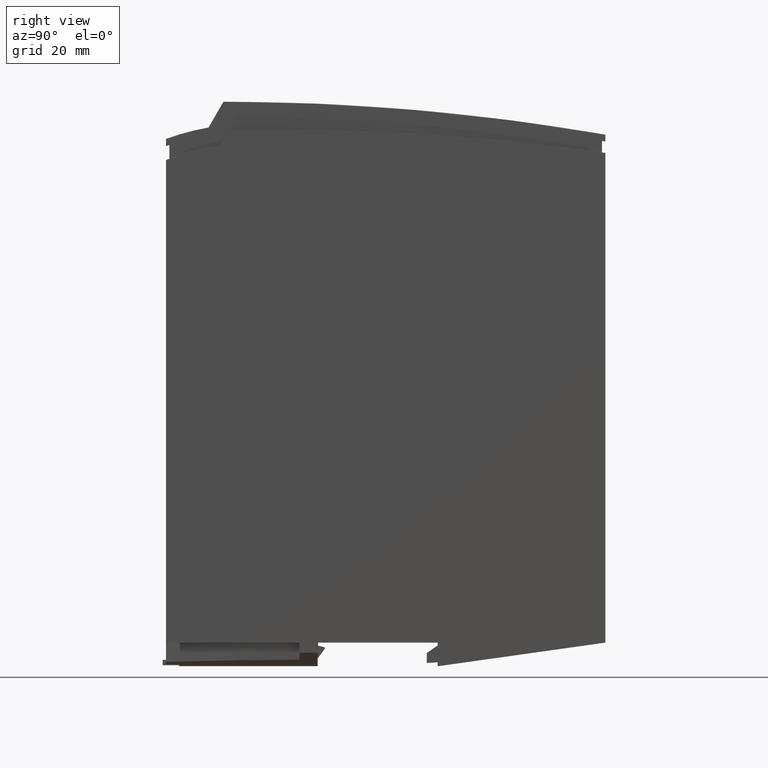
[diagram: clean part render]
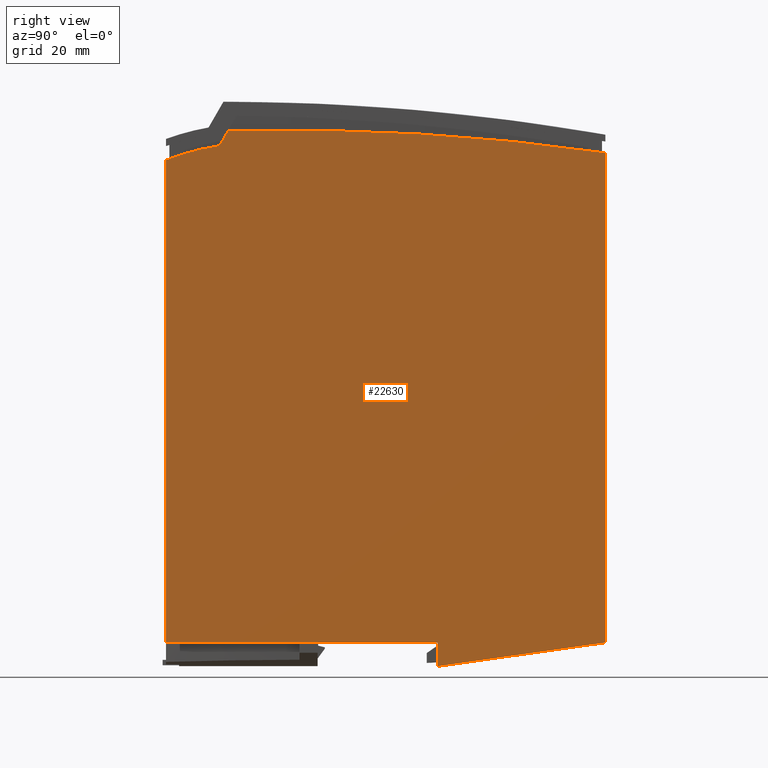
[diagram: same view with one face highlighted and labeled with its STEP entity id]
A machine part, right view. The second image highlights one B-rep face of the part: STEP entity #22630.
In plain terms, the highlighted planar face has unit normal (1, 0, 0).
Its self-contained STEP definition (entity closure, byte-faithful):
#6640=CARTESIAN_POINT('',(0.,80.35,-50.5));
#6650=VERTEX_POINT('',#6640);
#6680=CARTESIAN_POINT('',(128.90472881771,80.35,-50.5));
#6690=DIRECTION('',(-1.,0.,0.));
#6700=VECTOR('',#6690,1.);
#6710=LINE('',#6680,#6700);
#6720=CARTESIAN_POINT('',(-6.99999999999977,80.35,-50.5));
#6730=VERTEX_POINT('',#6720);
#6740=EDGE_CURVE('',#6650,#6730,#6710,.T.);
#14390=CARTESIAN_POINT('',(0.,0.,-50.5));
#14400=VERTEX_POINT('',#14390);
#14430=CARTESIAN_POINT('',(0.,64.9999998943551,-50.5));
#14440=DIRECTION('',(0.,1.,0.));
#14450=VECTOR('',#14440,1.);
#14460=LINE('',#14430,#14450);
#14470=EDGE_CURVE('',#14400,#6650,#14460,.T.);
#20020=CARTESIAN_POINT('',(-9.16414905819761,64.9999998943551,-50.5));
#20030=DIRECTION('',(0.139606237490195,0.990207098769662,0.));
#20040=VECTOR('',#20030,1.);
#20050=LINE('',#20020,#20040);
#20060=CARTESIAN_POINT('',(0.,130.,-50.5));
#20070=VERTEX_POINT('',#20060);
#20080=EDGE_CURVE('',#6730,#20070,#20050,.T.);
#22130=CARTESIAN_POINT('',(0.,0.,-50.5));
#22140=DIRECTION('',(0.,0.,-1.));
#22150=DIRECTION('',(1.,0.,0.));
#22160=AXIS2_PLACEMENT_3D('',#22130,#22140,#22150);
#22170=PLANE('',#22160);
#22180=ORIENTED_EDGE('',*,*,#6740,.T.);
#22190=ORIENTED_EDGE('',*,*,#14470,.T.);
#22200=CARTESIAN_POINT('',(128.90472881771,0.,-50.5));
#22210=DIRECTION('',(-1.,0.,0.));
#22220=VECTOR('',#22210,1.);
#22230=LINE('',#22200,#22220);
#22240=CARTESIAN_POINT('',(142.740813604314,0.,-50.5));
#22250=VERTEX_POINT('',#22240);
#22260=EDGE_CURVE('',#22250,#14400,#22230,.T.);
#22270=ORIENTED_EDGE('',*,*,#22260,.T.);
#22280=CARTESIAN_POINT('',(78.52,25.64,-50.5));
#22290=DIRECTION('',(0.,0.,1.));
#22300=DIRECTION('',(1.,0.,0.));
#22310=AXIS2_PLACEMENT_3D('',#22280,#22290,#22300);
#22320=CIRCLE('',#22310,69.15);
#22330=CARTESIAN_POINT('',(146.969994064791,15.8256832876613,-50.5));
#22340=VERTEX_POINT('',#22330);
#22350=EDGE_CURVE('',#22250,#22340,#22320,.T.);
#22360=ORIENTED_EDGE('',*,*,#22350,.F.);
#22370=CARTESIAN_POINT('',(128.90472881771,5.42665736895805,-50.5));
#22380=DIRECTION('',(-0.86666783043328,-0.498885629871288,0.));
#22390=VECTOR('',#22380,1.);
#22400=LINE('',#22370,#22390);
#22410=CARTESIAN_POINT('',(151.390000000037,18.3700000000256,-50.5));
#22420=VERTEX_POINT('',#22410);
#22430=EDGE_CURVE('',#22420,#22340,#22400,.T.);
#22440=ORIENTED_EDGE('',*,*,#22430,.T.);
#22450=CARTESIAN_POINT('',(-504.,36.,-50.5));
#22460=DIRECTION('',(0.,0.,1.));
#22470=DIRECTION('',(1.,0.,0.));
#22480=AXIS2_PLACEMENT_3D('',#22450,#22460,#22470);
#22490=CIRCLE('',#22480,655.6270807403);
#22500=CARTESIAN_POINT('',(144.853503496781,130.,-50.5));
#22510=VERTEX_POINT('',#22500);
#22520=EDGE_CURVE('',#22420,#22510,#22490,.T.);
#22530=ORIENTED_EDGE('',*,*,#22520,.F.);
#22540=CARTESIAN_POINT('',(128.90472881771,130.,-50.5));
#22550=DIRECTION('',(-1.,0.,0.));
#22560=VECTOR('',#22550,1.);
#22570=LINE('',#22540,#22560);
#22580=EDGE_CURVE('',#22510,#20070,#22570,.T.);
#22590=ORIENTED_EDGE('',*,*,#22580,.F.);
#22600=ORIENTED_EDGE('',*,*,#20080,.T.);
#22610=EDGE_LOOP('',(#22600,#22590,#22530,#22440,#22360,#22270,#22190,
#22180));
#22620=FACE_OUTER_BOUND('',#22610,.T.);
#22630=ADVANCED_FACE('',(#22620),#22170,.T.);